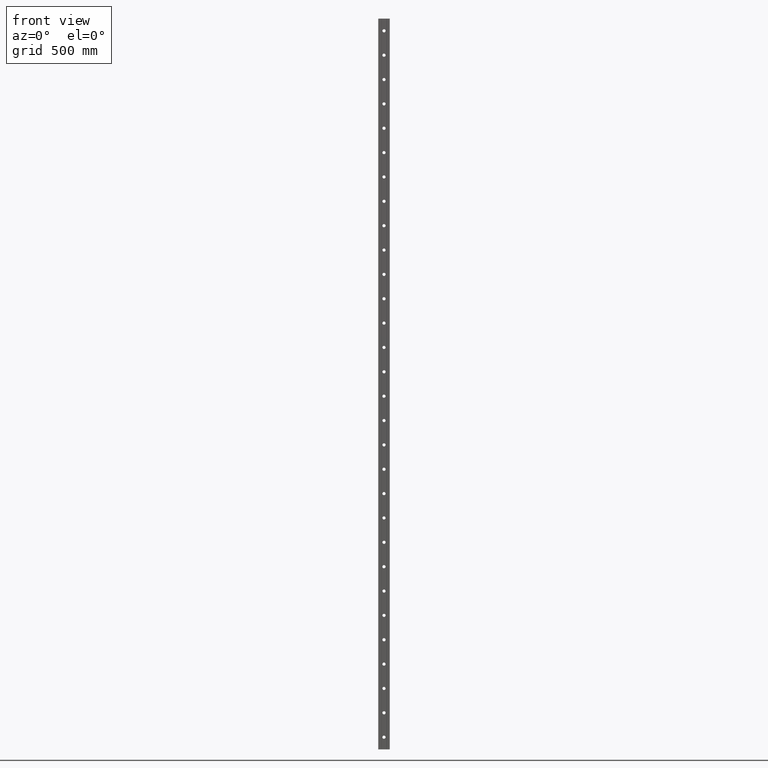
[diagram: clean part render]
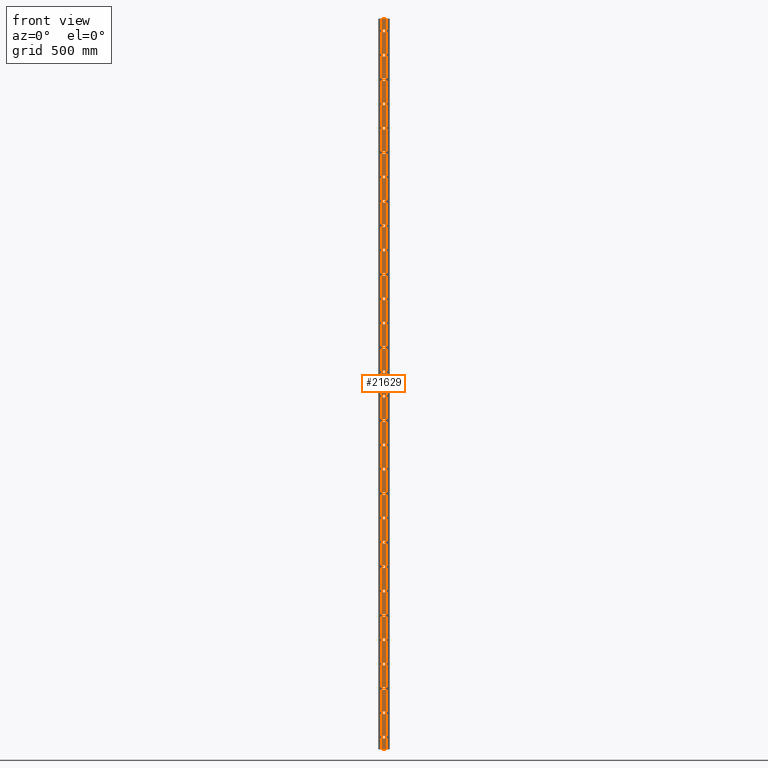
[diagram: same view with one face highlighted and labeled with its STEP entity id]
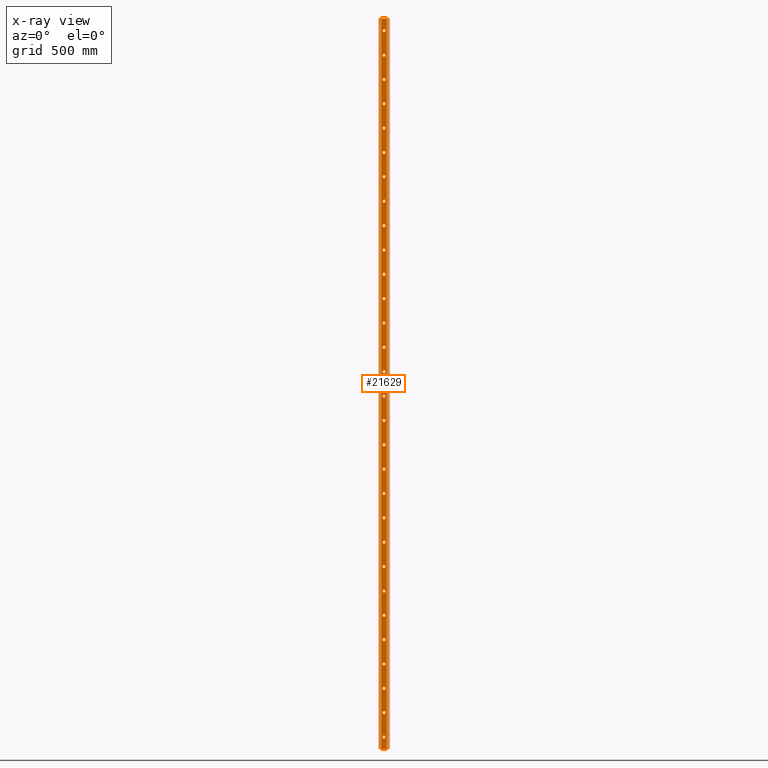
[diagram: x-ray of the same camera — body ghosted, the highlighted face saturated]
A machine part, front view. The second image highlights one B-rep face of the part: STEP entity #21629.
The next image is the same camera in x-ray: the body ghosted, the highlighted face saturated — about 0% of this face is hidden behind the body in this view.
In plain terms, the highlighted planar face has unit normal (-0, 1, 0).
Its self-contained STEP definition (entity closure, byte-faithful):
#4 = ORIENTED_EDGE ( 'NONE', *, *, #7362, .T. ) ;
#114 = AXIS2_PLACEMENT_3D ( 'NONE', #14451, #12893, #659 ) ;
#120 = DIRECTION ( 'NONE',  ( -1.000000000000000000, 0.0000000000000000000, 0.0000000000000000000 ) ) ;
#122 = VERTEX_POINT ( 'NONE', #15105 ) ;
#173 = CARTESIAN_POINT ( 'NONE',  ( -1.836970198721031300E-013, 3.000000000000000900, 749.9999999999998900 ) ) ;
#284 = FACE_BOUND ( 'NONE', #6459, .T. ) ;
#305 = CIRCLE ( 'NONE', #7468, 6.499999999999997300 ) ;
#328 = CIRCLE ( 'NONE', #14972, 6.499999999999997300 ) ;
#337 = CARTESIAN_POINT ( 'NONE',  ( -1.836970198721031300E-013, 3.000000000000000900, 656.4999999999998900 ) ) ;
#366 = DIRECTION ( 'NONE',  ( -1.971276677246371600E-017, 1.000000000000000000, 0.0000000000000000000 ) ) ;
#396 = ORIENTED_EDGE ( 'NONE', *, *, #4882, .T. ) ;
#406 = VERTEX_POINT ( 'NONE', #10564 ) ;
#439 = ORIENTED_EDGE ( 'NONE', *, *, #20376, .T. ) ;
#510 = DIRECTION ( 'NONE',  ( -1.000000000000000000, 0.0000000000000000000, 0.0000000000000000000 ) ) ;
#525 = VERTEX_POINT ( 'NONE', #20269 ) ;
#527 = EDGE_LOOP ( 'NONE', ( #14829, #18271 ) ) ;
#570 = FACE_BOUND ( 'NONE', #11585, .T. ) ;
#580 = AXIS2_PLACEMENT_3D ( 'NONE', #4723, #17041, #10023 ) ;
#640 = CARTESIAN_POINT ( 'NONE',  ( -1.836970198721031300E-013, 3.000000000000000900, -450.0000000000001700 ) ) ;
#659 = DIRECTION ( 'NONE',  ( -1.000000000000000000, -1.971276677246371600E-017, 0.0000000000000000000 ) ) ;
#673 = ORIENTED_EDGE ( 'NONE', *, *, #1696, .T. ) ;
#687 = ORIENTED_EDGE ( 'NONE', *, *, #9904, .T. ) ;
#733 = LINE ( 'NONE', #18919, #3772 ) ;
#774 = EDGE_CURVE ( 'NONE', #9876, #16069, #12146, .T. ) ;
#783 = CARTESIAN_POINT ( 'NONE',  ( -1.836970198721031300E-013, 3.000000000000000900, -50.00000000000004300 ) ) ;
#813 = CARTESIAN_POINT ( 'NONE',  ( -1.836970198721031300E-013, 3.000000000000000900, -850.0000000000003400 ) ) ;
#840 = DIRECTION ( 'NONE',  ( -1.000000000000000000, 0.0000000000000000000, 0.0000000000000000000 ) ) ;
#905 = CARTESIAN_POINT ( 'NONE',  ( -1.836970198721031300E-013, 3.000000000000000900, -950.0000000000004500 ) ) ;
#936 = DIRECTION ( 'NONE',  ( -1.000000000000000000, 0.0000000000000000000, 0.0000000000000000000 ) ) ;
#943 = EDGE_CURVE ( 'NONE', #13312, #6664, #18797, .T. ) ;
#990 = VERTEX_POINT ( 'NONE', #1374 ) ;
#1109 = CIRCLE ( 'NONE', #10396, 6.499999999999997300 ) ;
#1166 = DIRECTION ( 'NONE',  ( -1.000000000000000000, 0.0000000000000000000, 0.0000000000000000000 ) ) ;
#1189 = DIRECTION ( 'NONE',  ( -1.000000000000000000, 0.0000000000000000000, 0.0000000000000000000 ) ) ;
#1209 = EDGE_LOOP ( 'NONE', ( #19296, #17374 ) ) ;
#1247 = CIRCLE ( 'NONE', #5974, 6.499999999999997300 ) ;
#1255 = VERTEX_POINT ( 'NONE', #13732 ) ;
#1273 = ORIENTED_EDGE ( 'NONE', *, *, #18455, .T. ) ;
#1283 = CIRCLE ( 'NONE', #22304, 6.499999999999997300 ) ;
#1294 = ORIENTED_EDGE ( 'NONE', *, *, #18630, .F. ) ;
#1306 = CARTESIAN_POINT ( 'NONE',  ( -1.836970198721031300E-013, 3.000000000000000900, -343.5000000000000600 ) ) ;
#1327 = VERTEX_POINT ( 'NONE', #22798 ) ;
#1369 = FACE_BOUND ( 'NONE', #3134, .T. ) ;
#1370 = AXIS2_PLACEMENT_3D ( 'NONE', #10024, #15354, #1189 ) ;
#1374 = CARTESIAN_POINT ( 'NONE',  ( -1.829009994526573400E-013, 3.000000000000000900, -656.5000000000001100 ) ) ;
#1475 = AXIS2_PLACEMENT_3D ( 'NONE', #7935, #20257, #22024 ) ;
#1499 = CIRCLE ( 'NONE', #12950, 6.499999999999997300 ) ;
#1508 = ORIENTED_EDGE ( 'NONE', *, *, #2344, .T. ) ;
#1624 = CIRCLE ( 'NONE', #10233, 6.499999999999997300 ) ;
#1696 = EDGE_CURVE ( 'NONE', #16503, #1729, #2506, .T. ) ;
#1704 = VERTEX_POINT ( 'NONE', #10587 ) ;
#1729 = VERTEX_POINT ( 'NONE', #10506 ) ;
#1744 = VERTEX_POINT ( 'NONE', #15669 ) ;
#1760 = DIRECTION ( 'NONE',  ( -1.000000000000000000, 0.0000000000000000000, 0.0000000000000000000 ) ) ;
#1865 = EDGE_CURVE ( 'NONE', #10178, #22702, #13506, .T. ) ;
#1939 = FACE_BOUND ( 'NONE', #22731, .T. ) ;
#1960 = DIRECTION ( 'NONE',  ( 1.000000000000000000, 1.971276677246372000E-017, 0.0000000000000000000 ) ) ;
#2109 = AXIS2_PLACEMENT_3D ( 'NONE', #173, #16042, #17799 ) ;
#2146 = CARTESIAN_POINT ( 'NONE',  ( -1.829009994526573400E-013, 3.000000000000000900, 1343.500000000000000 ) ) ;
#2155 = EDGE_CURVE ( 'NONE', #9172, #2863, #16003, .T. ) ;
#2169 = VERTEX_POINT ( 'NONE', #12665 ) ;
#2249 = EDGE_LOOP ( 'NONE', ( #16012, #7678 ) ) ;
#2255 = DIRECTION ( 'NONE',  ( -1.971276677246371600E-017, 1.000000000000000000, 0.0000000000000000000 ) ) ;
#2330 = CARTESIAN_POINT ( 'NONE',  ( -1.836970198721031300E-013, 3.000000000000000900, 1049.999999999999800 ) ) ;
#2332 = EDGE_LOOP ( 'NONE', ( #3873, #673 ) ) ;
#2344 = EDGE_CURVE ( 'NONE', #13991, #3059, #21206, .T. ) ;
#2395 = AXIS2_PLACEMENT_3D ( 'NONE', #13084, #6135, #7843 ) ;
#2410 = DIRECTION ( 'NONE',  ( -1.000000000000000000, 0.0000000000000000000, 0.0000000000000000000 ) ) ;
#2477 = CARTESIAN_POINT ( 'NONE',  ( -1.836970198721031300E-013, 3.000000000000000900, -750.0000000000002300 ) ) ;
#2506 = CIRCLE ( 'NONE', #4606, 6.499999999999997300 ) ;
#2509 = DIRECTION ( 'NONE',  ( -1.000000000000000000, 0.0000000000000000000, 0.0000000000000000000 ) ) ;
#2512 = CARTESIAN_POINT ( 'NONE',  ( -1.836970198721031300E-013, 3.000000000000000900, -650.0000000000001100 ) ) ;
#2606 = VERTEX_POINT ( 'NONE', #16346 ) ;
#2610 = VERTEX_POINT ( 'NONE', #14652 ) ;
#2704 = VERTEX_POINT ( 'NONE', #9414 ) ;
#2707 = CIRCLE ( 'NONE', #9379, 6.499999999999997300 ) ;
#2726 = AXIS2_PLACEMENT_3D ( 'NONE', #8926, #7022, #14176 ) ;
#2788 = DIRECTION ( 'NONE',  ( -1.000000000000000000, 0.0000000000000000000, 0.0000000000000000000 ) ) ;
#2790 = CARTESIAN_POINT ( 'NONE',  ( -1.836970198721031300E-013, 3.000000000000000900, -450.0000000000001700 ) ) ;
#2831 = AXIS2_PLACEMENT_3D ( 'NONE', #19282, #8639, #10637 ) ;
#2842 = EDGE_LOOP ( 'NONE', ( #20369, #1508 ) ) ;
#2854 = DIRECTION ( 'NONE',  ( -1.000000000000000000, 0.0000000000000000000, 0.0000000000000000000 ) ) ;
#2863 = VERTEX_POINT ( 'NONE', #20493 ) ;
#2884 = DIRECTION ( 'NONE',  ( -1.000000000000000000, 0.0000000000000000000, 0.0000000000000000000 ) ) ;
#3053 = CARTESIAN_POINT ( 'NONE',  ( -1.836970198721031300E-013, 3.000000000000000900, -1150.000000000000200 ) ) ;
#3059 = VERTEX_POINT ( 'NONE', #21149 ) ;
#3083 = CARTESIAN_POINT ( 'NONE',  ( -1.829009994526573400E-013, 3.000000000000000900, 1243.500000000000000 ) ) ;
#3110 = EDGE_CURVE ( 'NONE', #22493, #15391, #3577, .T. ) ;
#3134 = EDGE_LOOP ( 'NONE', ( #11286, #6134 ) ) ;
#3156 = DIRECTION ( 'NONE',  ( -1.000000000000000000, 0.0000000000000000000, 0.0000000000000000000 ) ) ;
#3167 = CARTESIAN_POINT ( 'NONE',  ( -1.836970198721031300E-013, 3.000000000000000900, -1150.000000000000200 ) ) ;
#3288 = CARTESIAN_POINT ( 'NONE',  ( -1.836970198721031300E-013, 3.000000000000000900, 1456.500000000000000 ) ) ;
#3388 = EDGE_CURVE ( 'NONE', #21315, #9616, #11808, .T. ) ;
#3398 = CARTESIAN_POINT ( 'NONE',  ( -1.829009994526573400E-013, 3.000000000000000900, -56.50000000000004300 ) ) ;
#3420 = ORIENTED_EDGE ( 'NONE', *, *, #14029, .T. ) ;
#3453 = EDGE_LOOP ( 'NONE', ( #3759, #13193 ) ) ;
#3457 = EDGE_CURVE ( 'NONE', #13268, #18384, #9068, .T. ) ;
#3506 = AXIS2_PLACEMENT_3D ( 'NONE', #17915, #10885, #12668 ) ;
#3524 = CIRCLE ( 'NONE', #20225, 6.499999999999997300 ) ;
#3546 = CIRCLE ( 'NONE', #2831, 6.499999999999997300 ) ;
#3577 = CIRCLE ( 'NONE', #21126, 6.499999999999997300 ) ;
#3598 = CARTESIAN_POINT ( 'NONE',  ( -1.836970198721031300E-013, 3.000000000000000900, 49.99999999999982200 ) ) ;
#3647 = AXIS2_PLACEMENT_3D ( 'NONE', #21741, #18224, #510 ) ;
#3659 = CARTESIAN_POINT ( 'NONE',  ( -1.836970198721031300E-013, 3.000000000000000900, 49.99999999999982200 ) ) ;
#3715 = CARTESIAN_POINT ( 'NONE',  ( 11.00000000000000000, 3.000000000000000000, 1500.000000000000000 ) ) ;
#3718 = CARTESIAN_POINT ( 'NONE',  ( -5.913830031739115500E-017, 3.000000000000000000, 1500.000000000000000 ) ) ;
#3759 = ORIENTED_EDGE ( 'NONE', *, *, #14209, .T. ) ;
#3772 = VECTOR ( 'NONE', #11813, 1000.000000000000000 ) ;
#3825 = CARTESIAN_POINT ( 'NONE',  ( -1.829009994526573400E-013, 3.000000000000000900, 543.5000000000000000 ) ) ;
#3866 = EDGE_CURVE ( 'NONE', #21328, #2610, #1624, .T. ) ;
#3873 = ORIENTED_EDGE ( 'NONE', *, *, #10462, .T. ) ;
#3980 = DIRECTION ( 'NONE',  ( -1.000000000000000000, 0.0000000000000000000, 0.0000000000000000000 ) ) ;
#4012 = DIRECTION ( 'NONE',  ( -1.000000000000000000, 0.0000000000000000000, 0.0000000000000000000 ) ) ;
#4084 = CARTESIAN_POINT ( 'NONE',  ( -1.836970198721031300E-013, 3.000000000000000900, 950.0000000000000000 ) ) ;
#4105 = CARTESIAN_POINT ( 'NONE',  ( -1.829009994526573400E-013, 3.000000000000000900, 243.4999999999997700 ) ) ;
#4136 = VERTEX_POINT ( 'NONE', #10638 ) ;
#4140 = FACE_BOUND ( 'NONE', #1209, .T. ) ;
#4154 = EDGE_CURVE ( 'NONE', #18384, #13268, #6289, .T. ) ;
#4193 = EDGE_LOOP ( 'NONE', ( #20319, #22524 ) ) ;
#4258 = CIRCLE ( 'NONE', #13677, 6.499999999999997300 ) ;
#4276 = CARTESIAN_POINT ( 'NONE',  ( -1.836970198721031300E-013, 3.000000000000000900, -1450.000000000000500 ) ) ;
#4283 = DIRECTION ( 'NONE',  ( -1.000000000000000000, 0.0000000000000000000, 0.0000000000000000000 ) ) ;
#4301 = DIRECTION ( 'NONE',  ( -1.971276677246371600E-017, 1.000000000000000000, 0.0000000000000000000 ) ) ;
#4338 = AXIS2_PLACEMENT_3D ( 'NONE', #11273, #4426, #11346 ) ;
#4368 = CIRCLE ( 'NONE', #16814, 6.499999999999997300 ) ;
#4387 = DIRECTION ( 'NONE',  ( -1.971276677246371600E-017, 1.000000000000000000, 0.0000000000000000000 ) ) ;
#4389 = FACE_BOUND ( 'NONE', #14106, .T. ) ;
#4426 = DIRECTION ( 'NONE',  ( -1.971276677246371600E-017, 1.000000000000000000, 0.0000000000000000000 ) ) ;
#4447 = EDGE_LOOP ( 'NONE', ( #5564, #16438 ) ) ;
#4481 = ORIENTED_EDGE ( 'NONE', *, *, #11706, .T. ) ;
#4560 = DIRECTION ( 'NONE',  ( -1.971276677246371600E-017, 1.000000000000000000, 0.0000000000000000000 ) ) ;
#4592 = CARTESIAN_POINT ( 'NONE',  ( -1.829009994526573400E-013, 3.000000000000000900, 43.49999999999982200 ) ) ;
#4606 = AXIS2_PLACEMENT_3D ( 'NONE', #7068, #19462, #14069 ) ;
#4637 = CARTESIAN_POINT ( 'NONE',  ( -1.836970198721031300E-013, 3.000000000000000900, 849.9999999999998900 ) ) ;
#4638 = DIRECTION ( 'NONE',  ( -1.000000000000000000, 0.0000000000000000000, 0.0000000000000000000 ) ) ;
#4684 = FACE_BOUND ( 'NONE', #21239, .T. ) ;
#4692 = DIRECTION ( 'NONE',  ( -1.000000000000000000, 0.0000000000000000000, 0.0000000000000000000 ) ) ;
#4713 = AXIS2_PLACEMENT_3D ( 'NONE', #905, #6046, #18390 ) ;
#4723 = CARTESIAN_POINT ( 'NONE',  ( -1.836970198721031300E-013, 3.000000000000000900, 1450.000000000000000 ) ) ;
#4767 = DIRECTION ( 'NONE',  ( -1.971276677246371600E-017, 1.000000000000000000, 0.0000000000000000000 ) ) ;
#4779 = VERTEX_POINT ( 'NONE', #4592 ) ;
#4798 = DIRECTION ( 'NONE',  ( -1.000000000000000000, 0.0000000000000000000, 0.0000000000000000000 ) ) ;
#4882 = EDGE_CURVE ( 'NONE', #10625, #21904, #4913, .T. ) ;
#4913 = CIRCLE ( 'NONE', #5947, 6.499999999999997300 ) ;
#4944 = FACE_BOUND ( 'NONE', #22837, .T. ) ;
#4980 = CARTESIAN_POINT ( 'NONE',  ( -1.836970198721031300E-013, 3.000000000000000900, -1243.500000000000200 ) ) ;
#5075 = DIRECTION ( 'NONE',  ( -1.971276677246371600E-017, 1.000000000000000000, 0.0000000000000000000 ) ) ;
#5240 = FACE_BOUND ( 'NONE', #5884, .T. ) ;
#5434 = EDGE_LOOP ( 'NONE', ( #7693, #439 ) ) ;
#5462 = CIRCLE ( 'NONE', #21402, 6.499999999999997300 ) ;
#5465 = CARTESIAN_POINT ( 'NONE',  ( -1.829009994526573400E-013, 3.000000000000000900, -256.5000000000002300 ) ) ;
#5476 = EDGE_CURVE ( 'NONE', #20775, #4136, #2707, .T. ) ;
#5480 = ORIENTED_EDGE ( 'NONE', *, *, #6377, .T. ) ;
#5564 = ORIENTED_EDGE ( 'NONE', *, *, #16394, .T. ) ;
#5623 = CARTESIAN_POINT ( 'NONE',  ( -1.836970198721031300E-013, 3.000000000000000900, 756.4999999999998900 ) ) ;
#5670 = EDGE_CURVE ( 'NONE', #16844, #19947, #14559, .T. ) ;
#5702 = DIRECTION ( 'NONE',  ( -1.000000000000000000, 0.0000000000000000000, 0.0000000000000000000 ) ) ;
#5834 = DIRECTION ( 'NONE',  ( -1.000000000000000000, 0.0000000000000000000, 0.0000000000000000000 ) ) ;
#5852 = DIRECTION ( 'NONE',  ( -1.971276677246371600E-017, 1.000000000000000000, 0.0000000000000000000 ) ) ;
#5858 = ORIENTED_EDGE ( 'NONE', *, *, #8643, .T. ) ;
#5863 = EDGE_CURVE ( 'NONE', #8286, #9586, #6834, .T. ) ;
#5865 = CARTESIAN_POINT ( 'NONE',  ( -1.836970198721031300E-013, 3.000000000000000900, -250.0000000000002300 ) ) ;
#5884 = EDGE_LOOP ( 'NONE', ( #10803, #20116 ) ) ;
#5890 = ORIENTED_EDGE ( 'NONE', *, *, #15591, .T. ) ;
#5947 = AXIS2_PLACEMENT_3D ( 'NONE', #19074, #20841, #1760 ) ;
#5967 = CARTESIAN_POINT ( 'NONE',  ( -1.829009994526573400E-013, 3.000000000000000900, 343.4999999999998900 ) ) ;
#5974 = AXIS2_PLACEMENT_3D ( 'NONE', #3598, #12277, #21364 ) ;
#6000 = EDGE_LOOP ( 'NONE', ( #3420, #11154 ) ) ;
#6046 = DIRECTION ( 'NONE',  ( -1.971276677246371600E-017, 1.000000000000000000, 0.0000000000000000000 ) ) ;
#6054 = EDGE_CURVE ( 'NONE', #19978, #525, #8450, .T. ) ;
#6134 = ORIENTED_EDGE ( 'NONE', *, *, #16367, .T. ) ;
#6135 = DIRECTION ( 'NONE',  ( -1.971276677246371600E-017, 1.000000000000000000, 0.0000000000000000000 ) ) ;
#6190 = DIRECTION ( 'NONE',  ( -1.000000000000000000, 0.0000000000000000000, 0.0000000000000000000 ) ) ;
#6289 = CIRCLE ( 'NONE', #10360, 6.499999999999997300 ) ;
#6377 = EDGE_CURVE ( 'NONE', #21225, #18931, #17389, .T. ) ;
#6385 = ORIENTED_EDGE ( 'NONE', *, *, #18295, .T. ) ;
#6459 = EDGE_LOOP ( 'NONE', ( #20872, #19659 ) ) ;
#6466 = CARTESIAN_POINT ( 'NONE',  ( -1.836970198721031300E-013, 3.000000000000000900, -1350.000000000000200 ) ) ;
#6544 = CARTESIAN_POINT ( 'NONE',  ( -1.836970198721031300E-013, 3.000000000000000900, -143.5000000000001100 ) ) ;
#6564 = ORIENTED_EDGE ( 'NONE', *, *, #3110, .T. ) ;
#6570 = CARTESIAN_POINT ( 'NONE',  ( -1.836970198721031300E-013, 3.000000000000000900, -1043.500000000000000 ) ) ;
#6577 = DIRECTION ( 'NONE',  ( -1.000000000000000000, 0.0000000000000000000, 0.0000000000000000000 ) ) ;
#6582 = CIRCLE ( 'NONE', #17558, 6.499999999999997300 ) ;
#6602 = FACE_BOUND ( 'NONE', #21889, .T. ) ;
#6608 = ORIENTED_EDGE ( 'NONE', *, *, #16998, .T. ) ;
#6636 = ORIENTED_EDGE ( 'NONE', *, *, #1865, .T. ) ;
#6664 = VERTEX_POINT ( 'NONE', #10467 ) ;
#6698 = CARTESIAN_POINT ( 'NONE',  ( -1.836970198721031300E-013, 3.000000000000000900, 1150.000000000000000 ) ) ;
#6704 = CIRCLE ( 'NONE', #16070, 6.499999999999997300 ) ;
#6761 = DIRECTION ( 'NONE',  ( -1.971276677246371600E-017, 1.000000000000000000, 0.0000000000000000000 ) ) ;
#6834 = CIRCLE ( 'NONE', #19706, 6.499999999999997300 ) ;
#6858 = EDGE_LOOP ( 'NONE', ( #22310, #19196 ) ) ;
#7022 = DIRECTION ( 'NONE',  ( -1.971276677246371600E-017, 1.000000000000000000, 0.0000000000000000000 ) ) ;
#7028 = ORIENTED_EDGE ( 'NONE', *, *, #3457, .T. ) ;
#7068 = CARTESIAN_POINT ( 'NONE',  ( -1.836970198721031300E-013, 3.000000000000000900, -50.00000000000004300 ) ) ;
#7167 = FACE_BOUND ( 'NONE', #22093, .T. ) ;
#7286 = CARTESIAN_POINT ( 'NONE',  ( -1.836970198721031300E-013, 3.000000000000000900, 1250.000000000000000 ) ) ;
#7290 = AXIS2_PLACEMENT_3D ( 'NONE', #11297, #15011, #2854 ) ;
#7327 = AXIS2_PLACEMENT_3D ( 'NONE', #17006, #6761, #4692 ) ;
#7362 = EDGE_CURVE ( 'NONE', #9586, #8286, #22208, .T. ) ;
#7385 = AXIS2_PLACEMENT_3D ( 'NONE', #20468, #22444, #10114 ) ;
#7438 = AXIS2_PLACEMENT_3D ( 'NONE', #14905, #13437, #6190 ) ;
#7442 = CARTESIAN_POINT ( 'NONE',  ( -1.836970198721031300E-013, 3.000000000000000900, 649.9999999999998900 ) ) ;
#7468 = AXIS2_PLACEMENT_3D ( 'NONE', #14162, #17702, #17159 ) ;
#7496 = DIRECTION ( 'NONE',  ( -1.971276677246371600E-017, 1.000000000000000000, 0.0000000000000000000 ) ) ;
#7508 = DIRECTION ( 'NONE',  ( -1.971276677246371600E-017, 1.000000000000000000, 0.0000000000000000000 ) ) ;
#7534 = EDGE_LOOP ( 'NONE', ( #4, #21016 ) ) ;
#7638 = DIRECTION ( 'NONE',  ( -1.000000000000000000, 0.0000000000000000000, 0.0000000000000000000 ) ) ;
#7678 = ORIENTED_EDGE ( 'NONE', *, *, #6054, .T. ) ;
#7693 = ORIENTED_EDGE ( 'NONE', *, *, #14567, .T. ) ;
#7694 = CARTESIAN_POINT ( 'NONE',  ( -1.836970198721031300E-013, 3.000000000000000900, -950.0000000000004500 ) ) ;
#7695 = DIRECTION ( 'NONE',  ( -0.0000000000000000000, -0.0000000000000000000, -1.000000000000000000 ) ) ;
#7740 = DIRECTION ( 'NONE',  ( -1.000000000000000000, 0.0000000000000000000, 0.0000000000000000000 ) ) ;
#7741 = DIRECTION ( 'NONE',  ( -1.971276677246371600E-017, 1.000000000000000000, 0.0000000000000000000 ) ) ;
#7768 = CARTESIAN_POINT ( 'NONE',  ( 11.00000000000000000, 3.000000000000000000, 1500.000000000000000 ) ) ;
#7789 = DIRECTION ( 'NONE',  ( -1.971276677246371600E-017, 1.000000000000000000, 0.0000000000000000000 ) ) ;
#7814 = EDGE_LOOP ( 'NONE', ( #16770, #13207 ) ) ;
#7816 = EDGE_CURVE ( 'NONE', #22702, #10178, #10063, .T. ) ;
#7840 = AXIS2_PLACEMENT_3D ( 'NONE', #19125, #13958, #11869 ) ;
#7843 = DIRECTION ( 'NONE',  ( -1.000000000000000000, 0.0000000000000000000, 0.0000000000000000000 ) ) ;
#7935 = CARTESIAN_POINT ( 'NONE',  ( -1.836970198721031300E-013, 3.000000000000000900, 449.9999999999999400 ) ) ;
#7992 = LINE ( 'NONE', #7768, #13234 ) ;
#8008 = EDGE_LOOP ( 'NONE', ( #6385, #21382 ) ) ;
#8009 = VERTEX_POINT ( 'NONE', #1306 ) ;
#8013 = AXIS2_PLACEMENT_3D ( 'NONE', #17035, #9945, #4638 ) ;
#8028 = DIRECTION ( 'NONE',  ( -1.971276677246371600E-017, 1.000000000000000000, 0.0000000000000000000 ) ) ;
#8050 = EDGE_CURVE ( 'NONE', #20016, #16529, #11175, .T. ) ;
#8057 = AXIS2_PLACEMENT_3D ( 'NONE', #18935, #4767, #22386 ) ;
#8060 = CIRCLE ( 'NONE', #15997, 6.499999999999997300 ) ;
#8162 = DIRECTION ( 'NONE',  ( -1.000000000000000000, 0.0000000000000000000, 0.0000000000000000000 ) ) ;
#8190 = CIRCLE ( 'NONE', #14637, 6.499999999999997300 ) ;
#8246 = DIRECTION ( 'NONE',  ( -1.000000000000000000, 0.0000000000000000000, 0.0000000000000000000 ) ) ;
#8286 = VERTEX_POINT ( 'NONE', #11355 ) ;
#8409 = EDGE_CURVE ( 'NONE', #18931, #21225, #13085, .T. ) ;
#8450 = CIRCLE ( 'NONE', #14096, 6.499999999999997300 ) ;
#8552 = DIRECTION ( 'NONE',  ( 1.000000000000000000, 1.971276677246372000E-017, 0.0000000000000000000 ) ) ;
#8557 = CARTESIAN_POINT ( 'NONE',  ( -1.836970198721031300E-013, 3.000000000000000900, 256.4999999999997700 ) ) ;
#8581 = CARTESIAN_POINT ( 'NONE',  ( -1.829009994526573400E-013, 3.000000000000000900, -1356.500000000000200 ) ) ;
#8639 = DIRECTION ( 'NONE',  ( -1.971276677246371600E-017, 1.000000000000000000, 0.0000000000000000000 ) ) ;
#8640 = CARTESIAN_POINT ( 'NONE',  ( -1.836970198721031300E-013, 3.000000000000000900, 249.9999999999997700 ) ) ;
#8643 = EDGE_CURVE ( 'NONE', #17806, #4779, #1247, .T. ) ;
#8679 = EDGE_CURVE ( 'NONE', #17348, #2169, #18085, .T. ) ;
#8711 = CARTESIAN_POINT ( 'NONE',  ( -1.836970198721031300E-013, 3.000000000000000900, -1250.000000000000200 ) ) ;
#8792 = DIRECTION ( 'NONE',  ( -1.971276677246371600E-017, 1.000000000000000000, 0.0000000000000000000 ) ) ;
#8865 = EDGE_CURVE ( 'NONE', #9563, #16689, #11963, .T. ) ;
#8875 = DIRECTION ( 'NONE',  ( -1.000000000000000000, 0.0000000000000000000, 0.0000000000000000000 ) ) ;
#8926 = CARTESIAN_POINT ( 'NONE',  ( -1.836970198721031300E-013, 3.000000000000000900, -1350.000000000000200 ) ) ;
#9068 = CIRCLE ( 'NONE', #7290, 6.499999999999997300 ) ;
#9172 = VERTEX_POINT ( 'NONE', #337 ) ;
#9176 = CARTESIAN_POINT ( 'NONE',  ( -1.836970198721031300E-013, 3.000000000000000900, -443.5000000000001700 ) ) ;
#9185 = EDGE_LOOP ( 'NONE', ( #18012, #17765 ) ) ;
#9208 = CARTESIAN_POINT ( 'NONE',  ( -1.836970198721031300E-013, 3.000000000000000900, -250.0000000000002300 ) ) ;
#9260 = CARTESIAN_POINT ( 'NONE',  ( -1.836970198721031300E-013, 3.000000000000000900, 649.9999999999998900 ) ) ;
#9299 = VERTEX_POINT ( 'NONE', #3288 ) ;
#9304 = AXIS2_PLACEMENT_3D ( 'NONE', #19234, #13762, #3156 ) ;
#9330 = CIRCLE ( 'NONE', #8057, 6.499999999999997300 ) ;
#9351 = AXIS2_PLACEMENT_3D ( 'NONE', #7442, #21516, #16362 ) ;
#9379 = AXIS2_PLACEMENT_3D ( 'NONE', #640, #11384, #12953 ) ;
#9387 = EDGE_CURVE ( 'NONE', #2169, #17348, #21356, .T. ) ;
#9414 = CARTESIAN_POINT ( 'NONE',  ( -11.00000000000000000, 3.000000000000000000, -1500.000000000000000 ) ) ;
#9482 = DIRECTION ( 'NONE',  ( -1.000000000000000000, 0.0000000000000000000, 0.0000000000000000000 ) ) ;
#9499 = ORIENTED_EDGE ( 'NONE', *, *, #12409, .T. ) ;
#9523 = CARTESIAN_POINT ( 'NONE',  ( -1.836970198721031300E-013, 3.000000000000000900, -850.0000000000003400 ) ) ;
#9563 = VERTEX_POINT ( 'NONE', #6570 ) ;
#9586 = VERTEX_POINT ( 'NONE', #20590 ) ;
#9610 = CARTESIAN_POINT ( 'NONE',  ( -1.829009994526573400E-013, 3.000000000000000900, -1456.500000000000500 ) ) ;
#9616 = VERTEX_POINT ( 'NONE', #15209 ) ;
#9638 = DIRECTION ( 'NONE',  ( -1.971276677246371600E-017, 1.000000000000000000, 0.0000000000000000000 ) ) ;
#9661 = AXIS2_PLACEMENT_3D ( 'NONE', #17735, #17422, #21036 ) ;
#9741 = EDGE_CURVE ( 'NONE', #10958, #1704, #4258, .T. ) ;
#9876 = VERTEX_POINT ( 'NONE', #18417 ) ;
#9904 = EDGE_CURVE ( 'NONE', #2610, #21328, #1499, .T. ) ;
#9906 = FACE_BOUND ( 'NONE', #19530, .T. ) ;
#9945 = DIRECTION ( 'NONE',  ( -1.971276677246371600E-017, 1.000000000000000000, 0.0000000000000000000 ) ) ;
#10004 = DIRECTION ( 'NONE',  ( -1.971276677246371600E-017, 1.000000000000000000, 0.0000000000000000000 ) ) ;
#10023 = DIRECTION ( 'NONE',  ( -1.000000000000000000, 0.0000000000000000000, 0.0000000000000000000 ) ) ;
#10024 = CARTESIAN_POINT ( 'NONE',  ( -1.836970198721031300E-013, 3.000000000000000900, 849.9999999999998900 ) ) ;
#10063 = CIRCLE ( 'NONE', #9661, 6.499999999999997300 ) ;
#10114 = DIRECTION ( 'NONE',  ( -1.000000000000000000, 0.0000000000000000000, 0.0000000000000000000 ) ) ;
#10115 = VERTEX_POINT ( 'NONE', #17204 ) ;
#10144 = CARTESIAN_POINT ( 'NONE',  ( -1.836970198721031300E-013, 3.000000000000000900, 1049.999999999999800 ) ) ;
#10165 = FACE_BOUND ( 'NONE', #20159, .T. ) ;
#10175 = EDGE_CURVE ( 'NONE', #525, #19978, #6704, .T. ) ;
#10178 = VERTEX_POINT ( 'NONE', #18837 ) ;
#10184 = CIRCLE ( 'NONE', #4713, 6.499999999999997300 ) ;
#10233 = AXIS2_PLACEMENT_3D ( 'NONE', #9523, #11067, #4283 ) ;
#10328 = ORIENTED_EDGE ( 'NONE', *, *, #16169, .T. ) ;
#10359 = CARTESIAN_POINT ( 'NONE',  ( -1.829009994526573400E-013, 3.000000000000000900, 843.4999999999998900 ) ) ;
#10360 = AXIS2_PLACEMENT_3D ( 'NONE', #8640, #21192, #15988 ) ;
#10396 = AXIS2_PLACEMENT_3D ( 'NONE', #9208, #14369, #10884 ) ;
#10462 = EDGE_CURVE ( 'NONE', #1729, #16503, #11364, .T. ) ;
#10467 = CARTESIAN_POINT ( 'NONE',  ( -1.829009994526573400E-013, 3.000000000000000900, 443.4999999999999400 ) ) ;
#10489 = ORIENTED_EDGE ( 'NONE', *, *, #20812, .F. ) ;
#10506 = CARTESIAN_POINT ( 'NONE',  ( -1.836970198721031300E-013, 3.000000000000000900, -43.50000000000004300 ) ) ;
#10542 = CIRCLE ( 'NONE', #7840, 6.499999999999997300 ) ;
#10547 = EDGE_LOOP ( 'NONE', ( #5890, #9499 ) ) ;
#10564 = CARTESIAN_POINT ( 'NONE',  ( -1.836970198721031300E-013, 3.000000000000000900, -643.5000000000002300 ) ) ;
#10587 = CARTESIAN_POINT ( 'NONE',  ( -1.836970198721031300E-013, 3.000000000000000900, -243.5000000000002300 ) ) ;
#10607 = DIRECTION ( 'NONE',  ( -1.971276677246371600E-017, 1.000000000000000000, 0.0000000000000000000 ) ) ;
#10625 = VERTEX_POINT ( 'NONE', #6544 ) ;
#10632 = AXIS2_PLACEMENT_3D ( 'NONE', #8711, #8792, #8875 ) ;
#10637 = DIRECTION ( 'NONE',  ( -1.000000000000000000, 0.0000000000000000000, 0.0000000000000000000 ) ) ;
#10638 = CARTESIAN_POINT ( 'NONE',  ( -1.829009994526573400E-013, 3.000000000000000900, -456.5000000000001700 ) ) ;
#10728 = FACE_BOUND ( 'NONE', #8008, .T. ) ;
#10803 = ORIENTED_EDGE ( 'NONE', *, *, #9387, .T. ) ;
#10884 = DIRECTION ( 'NONE',  ( -1.000000000000000000, 0.0000000000000000000, 0.0000000000000000000 ) ) ;
#10885 = DIRECTION ( 'NONE',  ( -1.971276677246371600E-017, 1.000000000000000000, 0.0000000000000000000 ) ) ;
#10894 = DIRECTION ( 'NONE',  ( -1.000000000000000000, 0.0000000000000000000, 0.0000000000000000000 ) ) ;
#10958 = VERTEX_POINT ( 'NONE', #5465 ) ;
#11067 = DIRECTION ( 'NONE',  ( -1.971276677246371600E-017, 1.000000000000000000, 0.0000000000000000000 ) ) ;
#11120 = DIRECTION ( 'NONE',  ( -1.971276677246371600E-017, 1.000000000000000000, 0.0000000000000000000 ) ) ;
#11151 = AXIS2_PLACEMENT_3D ( 'NONE', #6698, #10607, #20941 ) ;
#11154 = ORIENTED_EDGE ( 'NONE', *, *, #8050, .T. ) ;
#11175 = CIRCLE ( 'NONE', #11151, 6.499999999999997300 ) ;
#11183 = CARTESIAN_POINT ( 'NONE',  ( -1.836970198721031300E-013, 3.000000000000000900, -1050.000000000000000 ) ) ;
#11189 = CIRCLE ( 'NONE', #20540, 6.499999999999997300 ) ;
#11271 = FACE_BOUND ( 'NONE', #9185, .T. ) ;
#11273 = CARTESIAN_POINT ( 'NONE',  ( -1.836970198721031300E-013, 3.000000000000000900, 1250.000000000000000 ) ) ;
#11286 = ORIENTED_EDGE ( 'NONE', *, *, #5670, .T. ) ;
#11297 = CARTESIAN_POINT ( 'NONE',  ( -1.836970198721031300E-013, 3.000000000000000900, 249.9999999999997700 ) ) ;
#11329 = DIRECTION ( 'NONE',  ( -1.971276677246371600E-017, 1.000000000000000000, 0.0000000000000000000 ) ) ;
#11336 = DIRECTION ( 'NONE',  ( -1.971276677246371600E-017, 1.000000000000000000, 0.0000000000000000000 ) ) ;
#11346 = DIRECTION ( 'NONE',  ( -1.000000000000000000, 0.0000000000000000000, 0.0000000000000000000 ) ) ;
#11355 = CARTESIAN_POINT ( 'NONE',  ( -1.829009994526573400E-013, 3.000000000000000900, -756.5000000000002300 ) ) ;
#11364 = CIRCLE ( 'NONE', #14132, 6.499999999999997300 ) ;
#11384 = DIRECTION ( 'NONE',  ( -1.971276677246371600E-017, 1.000000000000000000, 0.0000000000000000000 ) ) ;
#11512 = DIRECTION ( 'NONE',  ( -1.000000000000000000, 0.0000000000000000000, 0.0000000000000000000 ) ) ;
#11551 = VERTEX_POINT ( 'NONE', #14818 ) ;
#11582 = CIRCLE ( 'NONE', #1475, 6.499999999999997300 ) ;
#11585 = EDGE_LOOP ( 'NONE', ( #5480, #12290 ) ) ;
#11596 = DIRECTION ( 'NONE',  ( -1.971276677246371600E-017, 1.000000000000000000, 0.0000000000000000000 ) ) ;
#11618 = VERTEX_POINT ( 'NONE', #22420 ) ;
#11706 = EDGE_CURVE ( 'NONE', #2704, #2606, #22099, .T. ) ;
#11798 = DIRECTION ( 'NONE',  ( -1.971276677246371600E-017, 1.000000000000000000, 0.0000000000000000000 ) ) ;
#11801 = CARTESIAN_POINT ( 'NONE',  ( -1.836970198721031300E-013, 3.000000000000000900, 349.9999999999998900 ) ) ;
#11808 = CIRCLE ( 'NONE', #18791, 6.499999999999997300 ) ;
#11813 = DIRECTION ( 'NONE',  ( -0.0000000000000000000, -0.0000000000000000000, -1.000000000000000000 ) ) ;
#11869 = DIRECTION ( 'NONE',  ( -1.000000000000000000, 0.0000000000000000000, 0.0000000000000000000 ) ) ;
#11963 = CIRCLE ( 'NONE', #14575, 6.499999999999997300 ) ;
#12021 = DIRECTION ( 'NONE',  ( -1.971276677246371600E-017, 1.000000000000000000, 0.0000000000000000000 ) ) ;
#12044 = CARTESIAN_POINT ( 'NONE',  ( -1.836970198721031300E-013, 3.000000000000000900, 56.49999999999982200 ) ) ;
#12109 = CIRCLE ( 'NONE', #9304, 6.499999999999997300 ) ;
#12129 = CARTESIAN_POINT ( 'NONE',  ( -1.829009994526573400E-013, 3.000000000000000900, 1143.500000000000000 ) ) ;
#12146 = CIRCLE ( 'NONE', #2109, 6.499999999999997300 ) ;
#12161 = CIRCLE ( 'NONE', #4338, 6.499999999999997300 ) ;
#12187 = VECTOR ( 'NONE', #1960, 1000.000000000000000 ) ;
#12238 = EDGE_CURVE ( 'NONE', #16689, #9563, #18508, .T. ) ;
#12242 = CARTESIAN_POINT ( 'NONE',  ( -1.836970198721031300E-013, 3.000000000000000900, -1443.500000000000500 ) ) ;
#12257 = AXIS2_PLACEMENT_3D ( 'NONE', #12925, #16244, #5834 ) ;
#12277 = DIRECTION ( 'NONE',  ( -1.971276677246371600E-017, 1.000000000000000000, 0.0000000000000000000 ) ) ;
#12290 = ORIENTED_EDGE ( 'NONE', *, *, #8409, .T. ) ;
#12341 = CIRCLE ( 'NONE', #7327, 6.499999999999997300 ) ;
#12409 = EDGE_CURVE ( 'NONE', #1327, #9299, #13265, .T. ) ;
#12471 = ORIENTED_EDGE ( 'NONE', *, *, #3866, .T. ) ;
#12530 = ORIENTED_EDGE ( 'NONE', *, *, #19849, .T. ) ;
#12587 = PLANE ( 'NONE',  #114 ) ;
#12665 = CARTESIAN_POINT ( 'NONE',  ( -1.836970198721031300E-013, 3.000000000000000900, -543.5000000000001100 ) ) ;
#12666 = FACE_BOUND ( 'NONE', #21796, .T. ) ;
#12668 = DIRECTION ( 'NONE',  ( -1.000000000000000000, 0.0000000000000000000, 0.0000000000000000000 ) ) ;
#12758 = DIRECTION ( 'NONE',  ( -1.000000000000000000, 0.0000000000000000000, 0.0000000000000000000 ) ) ;
#12792 = VERTEX_POINT ( 'NONE', #16779 ) ;
#12893 = DIRECTION ( 'NONE',  ( -1.971276677246371600E-017, 1.000000000000000000, 0.0000000000000000000 ) ) ;
#12925 = CARTESIAN_POINT ( 'NONE',  ( -1.836970198721031300E-013, 3.000000000000000900, -150.0000000000001400 ) ) ;
#12950 = AXIS2_PLACEMENT_3D ( 'NONE', #813, #7741, #2509 ) ;
#12953 = DIRECTION ( 'NONE',  ( -1.000000000000000000, 0.0000000000000000000, 0.0000000000000000000 ) ) ;
#12954 = FACE_BOUND ( 'NONE', #6000, .T. ) ;
#13036 = DIRECTION ( 'NONE',  ( -1.000000000000000000, 0.0000000000000000000, 0.0000000000000000000 ) ) ;
#13084 = CARTESIAN_POINT ( 'NONE',  ( -1.836970198721031300E-013, 3.000000000000000900, 449.9999999999999400 ) ) ;
#13085 = CIRCLE ( 'NONE', #17810, 6.499999999999997300 ) ;
#13132 = CARTESIAN_POINT ( 'NONE',  ( -1.836970198721031300E-013, 3.000000000000000900, -943.5000000000004500 ) ) ;
#13193 = ORIENTED_EDGE ( 'NONE', *, *, #14835, .T. ) ;
#13207 = ORIENTED_EDGE ( 'NONE', *, *, #13554, .T. ) ;
#13211 = FACE_BOUND ( 'NONE', #10547, .T. ) ;
#13234 = VECTOR ( 'NONE', #7695, 1000.000000000000000 ) ;
#13265 = CIRCLE ( 'NONE', #580, 6.499999999999997300 ) ;
#13268 = VERTEX_POINT ( 'NONE', #8557 ) ;
#13272 = CARTESIAN_POINT ( 'NONE',  ( -1.836970198721031300E-013, 3.000000000000000900, -650.0000000000001100 ) ) ;
#13312 = VERTEX_POINT ( 'NONE', #21507 ) ;
#13437 = DIRECTION ( 'NONE',  ( -1.971276677246371600E-017, 1.000000000000000000, 0.0000000000000000000 ) ) ;
#13506 = CIRCLE ( 'NONE', #7438, 6.499999999999997300 ) ;
#13554 = EDGE_CURVE ( 'NONE', #4136, #20775, #17381, .T. ) ;
#13594 = EDGE_CURVE ( 'NONE', #6664, #13312, #11582, .T. ) ;
#13663 = EDGE_LOOP ( 'NONE', ( #396, #22102 ) ) ;
#13677 = AXIS2_PLACEMENT_3D ( 'NONE', #5865, #21581, #2410 ) ;
#13732 = CARTESIAN_POINT ( 'NONE',  ( -1.836970198721031300E-013, 3.000000000000000900, 1256.500000000000000 ) ) ;
#13762 = DIRECTION ( 'NONE',  ( -1.971276677246371600E-017, 1.000000000000000000, 0.0000000000000000000 ) ) ;
#13795 = CARTESIAN_POINT ( 'NONE',  ( -1.829009994526573400E-013, 3.000000000000000900, -156.5000000000001400 ) ) ;
#13889 = CARTESIAN_POINT ( 'NONE',  ( -1.829009994526573400E-013, 3.000000000000000900, -1256.500000000000200 ) ) ;
#13936 = EDGE_CURVE ( 'NONE', #10115, #21261, #10184, .T. ) ;
#13958 = DIRECTION ( 'NONE',  ( -1.971276677246371600E-017, 1.000000000000000000, 0.0000000000000000000 ) ) ;
#13985 = CIRCLE ( 'NONE', #19798, 6.499999999999997300 ) ;
#13991 = VERTEX_POINT ( 'NONE', #5967 ) ;
#14029 = EDGE_CURVE ( 'NONE', #16529, #20016, #22844, .T. ) ;
#14069 = DIRECTION ( 'NONE',  ( -1.000000000000000000, 0.0000000000000000000, 0.0000000000000000000 ) ) ;
#14096 = AXIS2_PLACEMENT_3D ( 'NONE', #3167, #5075, #18943 ) ;
#14106 = EDGE_LOOP ( 'NONE', ( #1273, #6564 ) ) ;
#14132 = AXIS2_PLACEMENT_3D ( 'NONE', #783, #7789, #936 ) ;
#14162 = CARTESIAN_POINT ( 'NONE',  ( -1.836970198721031300E-013, 3.000000000000000900, -350.0000000000001100 ) ) ;
#14176 = DIRECTION ( 'NONE',  ( -1.000000000000000000, 0.0000000000000000000, 0.0000000000000000000 ) ) ;
#14198 = ORIENTED_EDGE ( 'NONE', *, *, #7816, .T. ) ;
#14209 = EDGE_CURVE ( 'NONE', #22504, #122, #12109, .T. ) ;
#14369 = DIRECTION ( 'NONE',  ( -1.971276677246371600E-017, 1.000000000000000000, 0.0000000000000000000 ) ) ;
#14451 = CARTESIAN_POINT ( 'NONE',  ( -5.913830031739115500E-017, 3.000000000000000000, 1500.000000000000000 ) ) ;
#14559 = CIRCLE ( 'NONE', #2726, 6.499999999999997300 ) ;
#14567 = EDGE_CURVE ( 'NONE', #406, #990, #4368, .T. ) ;
#14575 = AXIS2_PLACEMENT_3D ( 'NONE', #17117, #17038, #2884 ) ;
#14637 = AXIS2_PLACEMENT_3D ( 'NONE', #7694, #4301, #840 ) ;
#14652 = CARTESIAN_POINT ( 'NONE',  ( -1.836970198721031300E-013, 3.000000000000000900, -843.5000000000003400 ) ) ;
#14818 = CARTESIAN_POINT ( 'NONE',  ( -1.829009994526573400E-013, 3.000000000000000900, -356.5000000000001100 ) ) ;
#14829 = ORIENTED_EDGE ( 'NONE', *, *, #22378, .T. ) ;
#14835 = EDGE_CURVE ( 'NONE', #122, #22504, #6582, .T. ) ;
#14866 = FACE_BOUND ( 'NONE', #527, .T. ) ;
#14868 = DIRECTION ( 'NONE',  ( -1.000000000000000000, 0.0000000000000000000, 0.0000000000000000000 ) ) ;
#14905 = CARTESIAN_POINT ( 'NONE',  ( -1.836970198721031300E-013, 3.000000000000000900, 1349.999999999999800 ) ) ;
#14945 = CARTESIAN_POINT ( 'NONE',  ( -1.836970198721031300E-013, 3.000000000000000900, 149.9999999999999100 ) ) ;
#14966 = DIRECTION ( 'NONE',  ( -1.000000000000000000, 0.0000000000000000000, 0.0000000000000000000 ) ) ;
#14972 = AXIS2_PLACEMENT_3D ( 'NONE', #17922, #21445, #10894 ) ;
#15011 = DIRECTION ( 'NONE',  ( -1.971276677246371600E-017, 1.000000000000000000, 0.0000000000000000000 ) ) ;
#15105 = CARTESIAN_POINT ( 'NONE',  ( -1.829009994526573400E-013, 3.000000000000000900, 943.5000000000000000 ) ) ;
#15209 = CARTESIAN_POINT ( 'NONE',  ( -1.836970198721031300E-013, 3.000000000000000900, 1056.499999999999800 ) ) ;
#15229 = CARTESIAN_POINT ( 'NONE',  ( -1.829009994526573400E-013, 3.000000000000000900, -856.5000000000002300 ) ) ;
#15263 = DIRECTION ( 'NONE',  ( -1.971276677246371600E-017, 1.000000000000000000, 0.0000000000000000000 ) ) ;
#15354 = DIRECTION ( 'NONE',  ( -1.971276677246371600E-017, 1.000000000000000000, 0.0000000000000000000 ) ) ;
#15359 = EDGE_CURVE ( 'NONE', #3059, #13991, #5462, .T. ) ;
#15376 = AXIS2_PLACEMENT_3D ( 'NONE', #6466, #15263, #2788 ) ;
#15391 = VERTEX_POINT ( 'NONE', #18453 ) ;
#15501 = ORIENTED_EDGE ( 'NONE', *, *, #21680, .T. ) ;
#15531 = VERTEX_POINT ( 'NONE', #13889 ) ;
#15572 = EDGE_CURVE ( 'NONE', #15531, #17750, #18412, .T. ) ;
#15579 = AXIS2_PLACEMENT_3D ( 'NONE', #19457, #19692, #12758 ) ;
#15591 = EDGE_CURVE ( 'NONE', #9299, #1327, #3546, .T. ) ;
#15669 = CARTESIAN_POINT ( 'NONE',  ( -1.829009994526573400E-013, 3.000000000000000900, 143.4999999999999100 ) ) ;
#15707 = EDGE_CURVE ( 'NONE', #4779, #17806, #3524, .T. ) ;
#15988 = DIRECTION ( 'NONE',  ( -1.000000000000000000, 0.0000000000000000000, 0.0000000000000000000 ) ) ;
#15995 = FACE_BOUND ( 'NONE', #7814, .T. ) ;
#15997 = AXIS2_PLACEMENT_3D ( 'NONE', #7286, #366, #3980 ) ;
#16003 = CIRCLE ( 'NONE', #9351, 6.499999999999997300 ) ;
#16012 = ORIENTED_EDGE ( 'NONE', *, *, #10175, .T. ) ;
#16042 = DIRECTION ( 'NONE',  ( -1.971276677246371600E-017, 1.000000000000000000, 0.0000000000000000000 ) ) ;
#16069 = VERTEX_POINT ( 'NONE', #5623 ) ;
#16070 = AXIS2_PLACEMENT_3D ( 'NONE', #3053, #11798, #120 ) ;
#16163 = VERTEX_POINT ( 'NONE', #9610 ) ;
#16169 = EDGE_CURVE ( 'NONE', #21261, #10115, #8190, .T. ) ;
#16230 = EDGE_CURVE ( 'NONE', #1744, #12792, #13985, .T. ) ;
#16231 = ORIENTED_EDGE ( 'NONE', *, *, #9741, .T. ) ;
#16244 = DIRECTION ( 'NONE',  ( -1.971276677246371600E-017, 1.000000000000000000, 0.0000000000000000000 ) ) ;
#16346 = CARTESIAN_POINT ( 'NONE',  ( 11.00000000000000000, 3.000000000000000000, -1500.000000000000000 ) ) ;
#16362 = DIRECTION ( 'NONE',  ( -1.000000000000000000, 0.0000000000000000000, 0.0000000000000000000 ) ) ;
#16367 = EDGE_CURVE ( 'NONE', #19947, #16844, #18659, .T. ) ;
#16372 = DIRECTION ( 'NONE',  ( -1.000000000000000000, 0.0000000000000000000, 0.0000000000000000000 ) ) ;
#16394 = EDGE_CURVE ( 'NONE', #9616, #21315, #11189, .T. ) ;
#16438 = ORIENTED_EDGE ( 'NONE', *, *, #3388, .T. ) ;
#16503 = VERTEX_POINT ( 'NONE', #3398 ) ;
#16526 = DIRECTION ( 'NONE',  ( -1.000000000000000000, 0.0000000000000000000, 0.0000000000000000000 ) ) ;
#16528 = FACE_BOUND ( 'NONE', #2332, .T. ) ;
#16529 = VERTEX_POINT ( 'NONE', #17396 ) ;
#16608 = CIRCLE ( 'NONE', #8013, 6.499999999999997300 ) ;
#16688 = EDGE_CURVE ( 'NONE', #21904, #10625, #21408, .T. ) ;
#16689 = VERTEX_POINT ( 'NONE', #17633 ) ;
#16770 = ORIENTED_EDGE ( 'NONE', *, *, #5476, .T. ) ;
#16778 = CARTESIAN_POINT ( 'NONE',  ( -1.829009994526573400E-013, 3.000000000000000900, -556.5000000000000000 ) ) ;
#16779 = CARTESIAN_POINT ( 'NONE',  ( -1.836970198721031300E-013, 3.000000000000000900, 156.4999999999999100 ) ) ;
#16814 = AXIS2_PLACEMENT_3D ( 'NONE', #2512, #16822, #16526 ) ;
#16822 = DIRECTION ( 'NONE',  ( -1.971276677246371600E-017, 1.000000000000000000, 0.0000000000000000000 ) ) ;
#16844 = VERTEX_POINT ( 'NONE', #18387 ) ;
#16872 = LINE ( 'NONE', #3718, #12187 ) ;
#16950 = DIRECTION ( 'NONE',  ( -1.971276677246371600E-017, 1.000000000000000000, 0.0000000000000000000 ) ) ;
#16986 = CARTESIAN_POINT ( 'NONE',  ( -1.829009994526573400E-013, 3.000000000000000900, 1043.499999999999800 ) ) ;
#16998 = EDGE_CURVE ( 'NONE', #11618, #2704, #733, .T. ) ;
#17006 = CARTESIAN_POINT ( 'NONE',  ( -1.836970198721031300E-013, 3.000000000000000900, 149.9999999999999100 ) ) ;
#17035 = CARTESIAN_POINT ( 'NONE',  ( -1.836970198721031300E-013, 3.000000000000000900, -1250.000000000000200 ) ) ;
#17038 = DIRECTION ( 'NONE',  ( -1.971276677246371600E-017, 1.000000000000000000, 0.0000000000000000000 ) ) ;
#17041 = DIRECTION ( 'NONE',  ( -1.971276677246371600E-017, 1.000000000000000000, 0.0000000000000000000 ) ) ;
#17117 = CARTESIAN_POINT ( 'NONE',  ( -1.836970198721031300E-013, 3.000000000000000900, -1050.000000000000000 ) ) ;
#17159 = DIRECTION ( 'NONE',  ( -1.000000000000000000, 0.0000000000000000000, 0.0000000000000000000 ) ) ;
#17170 = EDGE_CURVE ( 'NONE', #2863, #9172, #1283, .T. ) ;
#17204 = CARTESIAN_POINT ( 'NONE',  ( -1.829009994526573400E-013, 3.000000000000000900, -956.5000000000003400 ) ) ;
#17342 = FACE_BOUND ( 'NONE', #2249, .T. ) ;
#17348 = VERTEX_POINT ( 'NONE', #16778 ) ;
#17374 = ORIENTED_EDGE ( 'NONE', *, *, #22758, .T. ) ;
#17381 = CIRCLE ( 'NONE', #21673, 6.499999999999997300 ) ;
#17386 = CIRCLE ( 'NONE', #17642, 6.499999999999997300 ) ;
#17389 = CIRCLE ( 'NONE', #17639, 6.499999999999997300 ) ;
#17396 = CARTESIAN_POINT ( 'NONE',  ( -1.836970198721031300E-013, 3.000000000000000900, 1156.499999999999800 ) ) ;
#17422 = DIRECTION ( 'NONE',  ( -1.971276677246371600E-017, 1.000000000000000000, 0.0000000000000000000 ) ) ;
#17558 = AXIS2_PLACEMENT_3D ( 'NONE', #4084, #2255, #4012 ) ;
#17633 = CARTESIAN_POINT ( 'NONE',  ( -1.829009994526573400E-013, 3.000000000000000900, -1056.500000000000000 ) ) ;
#17637 = FACE_BOUND ( 'NONE', #6858, .T. ) ;
#17639 = AXIS2_PLACEMENT_3D ( 'NONE', #18892, #4560, #4798 ) ;
#17642 = AXIS2_PLACEMENT_3D ( 'NONE', #13272, #11329, #14966 ) ;
#17702 = DIRECTION ( 'NONE',  ( -1.971276677246371600E-017, 1.000000000000000000, 0.0000000000000000000 ) ) ;
#17706 = EDGE_LOOP ( 'NONE', ( #4481, #10489, #1294, #6608 ) ) ;
#17735 = CARTESIAN_POINT ( 'NONE',  ( -1.836970198721031300E-013, 3.000000000000000900, 1349.999999999999800 ) ) ;
#17736 = CARTESIAN_POINT ( 'NONE',  ( -5.913830031739115500E-017, 3.000000000000000000, -1500.000000000000000 ) ) ;
#17748 = AXIS2_PLACEMENT_3D ( 'NONE', #21809, #9638, #13036 ) ;
#17750 = VERTEX_POINT ( 'NONE', #4980 ) ;
#17765 = ORIENTED_EDGE ( 'NONE', *, *, #16230, .T. ) ;
#17799 = DIRECTION ( 'NONE',  ( -1.000000000000000000, 0.0000000000000000000, 0.0000000000000000000 ) ) ;
#17806 = VERTEX_POINT ( 'NONE', #12044 ) ;
#17810 = AXIS2_PLACEMENT_3D ( 'NONE', #22151, #11596, #11512 ) ;
#17913 = FACE_BOUND ( 'NONE', #4447, .T. ) ;
#17915 = CARTESIAN_POINT ( 'NONE',  ( -1.836970198721031300E-013, 3.000000000000000900, -550.0000000000000000 ) ) ;
#17922 = CARTESIAN_POINT ( 'NONE',  ( -1.836970198721031300E-013, 3.000000000000000900, -1450.000000000000500 ) ) ;
#18012 = ORIENTED_EDGE ( 'NONE', *, *, #22328, .T. ) ;
#18085 = CIRCLE ( 'NONE', #3647, 6.499999999999997300 ) ;
#18224 = DIRECTION ( 'NONE',  ( -1.971276677246371600E-017, 1.000000000000000000, 0.0000000000000000000 ) ) ;
#18271 = ORIENTED_EDGE ( 'NONE', *, *, #774, .T. ) ;
#18273 = ORIENTED_EDGE ( 'NONE', *, *, #17170, .T. ) ;
#18295 = EDGE_CURVE ( 'NONE', #8009, #11551, #10542, .T. ) ;
#18384 = VERTEX_POINT ( 'NONE', #4105 ) ;
#18387 = CARTESIAN_POINT ( 'NONE',  ( -1.836970198721031300E-013, 3.000000000000000900, -1343.500000000000500 ) ) ;
#18390 = DIRECTION ( 'NONE',  ( -1.000000000000000000, 0.0000000000000000000, 0.0000000000000000000 ) ) ;
#18412 = CIRCLE ( 'NONE', #10632, 6.499999999999997300 ) ;
#18417 = CARTESIAN_POINT ( 'NONE',  ( -1.829009994526573400E-013, 3.000000000000000900, 743.4999999999998900 ) ) ;
#18453 = CARTESIAN_POINT ( 'NONE',  ( -1.836970198721031300E-013, 3.000000000000000900, 856.4999999999997700 ) ) ;
#18455 = EDGE_CURVE ( 'NONE', #15391, #22493, #19089, .T. ) ;
#18508 = CIRCLE ( 'NONE', #21065, 6.499999999999997300 ) ;
#18570 = DIRECTION ( 'NONE',  ( -1.971276677246371600E-017, 1.000000000000000000, 0.0000000000000000000 ) ) ;
#18630 = EDGE_CURVE ( 'NONE', #11618, #19264, #16872, .T. ) ;
#18659 = CIRCLE ( 'NONE', #15376, 6.499999999999997300 ) ;
#18709 = ORIENTED_EDGE ( 'NONE', *, *, #2155, .T. ) ;
#18745 = FACE_OUTER_BOUND ( 'NONE', #17706, .T. ) ;
#18791 = AXIS2_PLACEMENT_3D ( 'NONE', #2330, #5852, #5702 ) ;
#18797 = CIRCLE ( 'NONE', #2395, 6.499999999999997300 ) ;
#18806 = VECTOR ( 'NONE', #8552, 1000.000000000000000 ) ;
#18837 = CARTESIAN_POINT ( 'NONE',  ( -1.836970198721031300E-013, 3.000000000000000900, 1356.499999999999800 ) ) ;
#18890 = EDGE_CURVE ( 'NONE', #1255, #22366, #8060, .T. ) ;
#18892 = CARTESIAN_POINT ( 'NONE',  ( -1.836970198721031300E-013, 3.000000000000000900, 549.9999999999998900 ) ) ;
#18919 = CARTESIAN_POINT ( 'NONE',  ( -11.00000000000000000, 3.000000000000000000, 1500.000000000000000 ) ) ;
#18931 = VERTEX_POINT ( 'NONE', #3825 ) ;
#18935 = CARTESIAN_POINT ( 'NONE',  ( -1.836970198721031300E-013, 3.000000000000000900, 749.9999999999998900 ) ) ;
#18943 = DIRECTION ( 'NONE',  ( -1.000000000000000000, 0.0000000000000000000, 0.0000000000000000000 ) ) ;
#19059 = EDGE_CURVE ( 'NONE', #17750, #15531, #16608, .T. ) ;
#19074 = CARTESIAN_POINT ( 'NONE',  ( -1.836970198721031300E-013, 3.000000000000000900, -150.0000000000001400 ) ) ;
#19089 = CIRCLE ( 'NONE', #1370, 6.499999999999997300 ) ;
#19125 = CARTESIAN_POINT ( 'NONE',  ( -1.836970198721031300E-013, 3.000000000000000900, -350.0000000000001100 ) ) ;
#19196 = ORIENTED_EDGE ( 'NONE', *, *, #15572, .T. ) ;
#19234 = CARTESIAN_POINT ( 'NONE',  ( -1.836970198721031300E-013, 3.000000000000000900, 950.0000000000000000 ) ) ;
#19264 = VERTEX_POINT ( 'NONE', #3715 ) ;
#19282 = CARTESIAN_POINT ( 'NONE',  ( -1.836970198721031300E-013, 3.000000000000000900, 1450.000000000000000 ) ) ;
#19296 = ORIENTED_EDGE ( 'NONE', *, *, #20200, .T. ) ;
#19457 = CARTESIAN_POINT ( 'NONE',  ( -1.836970198721031300E-013, 3.000000000000000900, -750.0000000000002300 ) ) ;
#19462 = DIRECTION ( 'NONE',  ( -1.971276677246371600E-017, 1.000000000000000000, 0.0000000000000000000 ) ) ;
#19511 = DIRECTION ( 'NONE',  ( -1.000000000000000000, 0.0000000000000000000, 0.0000000000000000000 ) ) ;
#19530 = EDGE_LOOP ( 'NONE', ( #10328, #20168 ) ) ;
#19562 = FACE_BOUND ( 'NONE', #4193, .T. ) ;
#19659 = ORIENTED_EDGE ( 'NONE', *, *, #12238, .T. ) ;
#19692 = DIRECTION ( 'NONE',  ( -1.971276677246371600E-017, 1.000000000000000000, 0.0000000000000000000 ) ) ;
#19706 = AXIS2_PLACEMENT_3D ( 'NONE', #2477, #4387, #7638 ) ;
#19798 = AXIS2_PLACEMENT_3D ( 'NONE', #14945, #18570, #14868 ) ;
#19849 = EDGE_CURVE ( 'NONE', #22366, #1255, #12161, .T. ) ;
#19947 = VERTEX_POINT ( 'NONE', #8581 ) ;
#19978 = VERTEX_POINT ( 'NONE', #22513 ) ;
#20016 = VERTEX_POINT ( 'NONE', #12129 ) ;
#20109 = FACE_BOUND ( 'NONE', #2842, .T. ) ;
#20116 = ORIENTED_EDGE ( 'NONE', *, *, #8679, .T. ) ;
#20159 = EDGE_LOOP ( 'NONE', ( #20341, #12530 ) ) ;
#20168 = ORIENTED_EDGE ( 'NONE', *, *, #13936, .T. ) ;
#20200 = EDGE_CURVE ( 'NONE', #20713, #16163, #328, .T. ) ;
#20225 = AXIS2_PLACEMENT_3D ( 'NONE', #3659, #7508, #19511 ) ;
#20257 = DIRECTION ( 'NONE',  ( -1.971276677246371600E-017, 1.000000000000000000, 0.0000000000000000000 ) ) ;
#20269 = CARTESIAN_POINT ( 'NONE',  ( -1.836970198721031300E-013, 3.000000000000000900, -1143.500000000000200 ) ) ;
#20319 = ORIENTED_EDGE ( 'NONE', *, *, #943, .T. ) ;
#20341 = ORIENTED_EDGE ( 'NONE', *, *, #18890, .T. ) ;
#20369 = ORIENTED_EDGE ( 'NONE', *, *, #15359, .T. ) ;
#20376 = EDGE_CURVE ( 'NONE', #990, #406, #17386, .T. ) ;
#20468 = CARTESIAN_POINT ( 'NONE',  ( -1.836970198721031300E-013, 3.000000000000000900, 1150.000000000000000 ) ) ;
#20493 = CARTESIAN_POINT ( 'NONE',  ( -1.829009994526573400E-013, 3.000000000000000900, 643.5000000000000000 ) ) ;
#20540 = AXIS2_PLACEMENT_3D ( 'NONE', #10144, #10004, #1166 ) ;
#20590 = CARTESIAN_POINT ( 'NONE',  ( -1.836970198721031300E-013, 3.000000000000000900, -743.5000000000002300 ) ) ;
#20654 = FACE_BOUND ( 'NONE', #7534, .T. ) ;
#20713 = VERTEX_POINT ( 'NONE', #12242 ) ;
#20775 = VERTEX_POINT ( 'NONE', #9176 ) ;
#20812 = EDGE_CURVE ( 'NONE', #19264, #2606, #7992, .T. ) ;
#20841 = DIRECTION ( 'NONE',  ( -1.971276677246371600E-017, 1.000000000000000000, 0.0000000000000000000 ) ) ;
#20872 = ORIENTED_EDGE ( 'NONE', *, *, #8865, .T. ) ;
#20941 = DIRECTION ( 'NONE',  ( -1.000000000000000000, 0.0000000000000000000, 0.0000000000000000000 ) ) ;
#20945 = EDGE_CURVE ( 'NONE', #11551, #8009, #305, .T. ) ;
#20979 = ORIENTED_EDGE ( 'NONE', *, *, #4154, .T. ) ;
#21016 = ORIENTED_EDGE ( 'NONE', *, *, #5863, .T. ) ;
#21036 = DIRECTION ( 'NONE',  ( -1.000000000000000000, 0.0000000000000000000, 0.0000000000000000000 ) ) ;
#21065 = AXIS2_PLACEMENT_3D ( 'NONE', #11183, #11120, #16372 ) ;
#21126 = AXIS2_PLACEMENT_3D ( 'NONE', #4637, #8028, #8246 ) ;
#21149 = CARTESIAN_POINT ( 'NONE',  ( -1.836970198721031300E-013, 3.000000000000000900, 356.4999999999998900 ) ) ;
#21192 = DIRECTION ( 'NONE',  ( -1.971276677246371600E-017, 1.000000000000000000, 0.0000000000000000000 ) ) ;
#21199 = FACE_BOUND ( 'NONE', #13663, .T. ) ;
#21206 = CIRCLE ( 'NONE', #17748, 6.499999999999997300 ) ;
#21225 = VERTEX_POINT ( 'NONE', #21765 ) ;
#21239 = EDGE_LOOP ( 'NONE', ( #18709, #18273 ) ) ;
#21261 = VERTEX_POINT ( 'NONE', #13132 ) ;
#21315 = VERTEX_POINT ( 'NONE', #16986 ) ;
#21328 = VERTEX_POINT ( 'NONE', #15229 ) ;
#21356 = CIRCLE ( 'NONE', #3506, 6.499999999999997300 ) ;
#21364 = DIRECTION ( 'NONE',  ( -1.000000000000000000, 0.0000000000000000000, 0.0000000000000000000 ) ) ;
#21382 = ORIENTED_EDGE ( 'NONE', *, *, #20945, .T. ) ;
#21402 = AXIS2_PLACEMENT_3D ( 'NONE', #11801, #12021, #6577 ) ;
#21408 = CIRCLE ( 'NONE', #12257, 6.499999999999997300 ) ;
#21445 = DIRECTION ( 'NONE',  ( -1.971276677246371600E-017, 1.000000000000000000, 0.0000000000000000000 ) ) ;
#21507 = CARTESIAN_POINT ( 'NONE',  ( -1.836970198721031300E-013, 3.000000000000000900, 456.4999999999999400 ) ) ;
#21516 = DIRECTION ( 'NONE',  ( -1.971276677246371600E-017, 1.000000000000000000, 0.0000000000000000000 ) ) ;
#21539 = ORIENTED_EDGE ( 'NONE', *, *, #15707, .T. ) ;
#21581 = DIRECTION ( 'NONE',  ( -1.971276677246371600E-017, 1.000000000000000000, 0.0000000000000000000 ) ) ;
#21629 = ADVANCED_FACE ( 'NONE', ( #4140, #1369, #17637, #17342, #284, #9906, #12666, #20654, #21760, #5240, #15995, #10728, #6602, #21199, #16528, #7167, #11271, #1939, #20109, #19562, #570, #4684, #14866, #4389, #22556, #17913, #12954, #10165, #4944, #13211, #18745 ), #12587, .F. ) ;
#21673 = AXIS2_PLACEMENT_3D ( 'NONE', #2790, #16950, #8162 ) ;
#21680 = EDGE_CURVE ( 'NONE', #1704, #10958, #1109, .T. ) ;
#21710 = CIRCLE ( 'NONE', #21778, 6.499999999999997300 ) ;
#21741 = CARTESIAN_POINT ( 'NONE',  ( -1.836970198721031300E-013, 3.000000000000000900, -550.0000000000000000 ) ) ;
#21760 = FACE_BOUND ( 'NONE', #5434, .T. ) ;
#21765 = CARTESIAN_POINT ( 'NONE',  ( -1.836970198721031300E-013, 3.000000000000000900, 556.4999999999998900 ) ) ;
#21778 = AXIS2_PLACEMENT_3D ( 'NONE', #4276, #11336, #7740 ) ;
#21796 = EDGE_LOOP ( 'NONE', ( #687, #12471 ) ) ;
#21809 = CARTESIAN_POINT ( 'NONE',  ( -1.836970198721031300E-013, 3.000000000000000900, 349.9999999999998900 ) ) ;
#21889 = EDGE_LOOP ( 'NONE', ( #15501, #16231 ) ) ;
#21904 = VERTEX_POINT ( 'NONE', #13795 ) ;
#22024 = DIRECTION ( 'NONE',  ( -1.000000000000000000, 0.0000000000000000000, 0.0000000000000000000 ) ) ;
#22093 = EDGE_LOOP ( 'NONE', ( #5858, #21539 ) ) ;
#22099 = LINE ( 'NONE', #17736, #18806 ) ;
#22102 = ORIENTED_EDGE ( 'NONE', *, *, #16688, .T. ) ;
#22151 = CARTESIAN_POINT ( 'NONE',  ( -1.836970198721031300E-013, 3.000000000000000900, 549.9999999999998900 ) ) ;
#22208 = CIRCLE ( 'NONE', #15579, 6.499999999999997300 ) ;
#22304 = AXIS2_PLACEMENT_3D ( 'NONE', #9260, #7496, #9482 ) ;
#22310 = ORIENTED_EDGE ( 'NONE', *, *, #19059, .T. ) ;
#22328 = EDGE_CURVE ( 'NONE', #12792, #1744, #12341, .T. ) ;
#22366 = VERTEX_POINT ( 'NONE', #3083 ) ;
#22378 = EDGE_CURVE ( 'NONE', #16069, #9876, #9330, .T. ) ;
#22386 = DIRECTION ( 'NONE',  ( -1.000000000000000000, 0.0000000000000000000, 0.0000000000000000000 ) ) ;
#22420 = CARTESIAN_POINT ( 'NONE',  ( -11.00000000000000000, 3.000000000000000000, 1500.000000000000000 ) ) ;
#22444 = DIRECTION ( 'NONE',  ( -1.971276677246371600E-017, 1.000000000000000000, 0.0000000000000000000 ) ) ;
#22493 = VERTEX_POINT ( 'NONE', #10359 ) ;
#22504 = VERTEX_POINT ( 'NONE', #22687 ) ;
#22513 = CARTESIAN_POINT ( 'NONE',  ( -1.829009994526573400E-013, 3.000000000000000900, -1156.500000000000000 ) ) ;
#22524 = ORIENTED_EDGE ( 'NONE', *, *, #13594, .T. ) ;
#22556 = FACE_BOUND ( 'NONE', #3453, .T. ) ;
#22687 = CARTESIAN_POINT ( 'NONE',  ( -1.836970198721031300E-013, 3.000000000000000900, 956.4999999999998900 ) ) ;
#22702 = VERTEX_POINT ( 'NONE', #2146 ) ;
#22731 = EDGE_LOOP ( 'NONE', ( #7028, #20979 ) ) ;
#22758 = EDGE_CURVE ( 'NONE', #16163, #20713, #21710, .T. ) ;
#22798 = CARTESIAN_POINT ( 'NONE',  ( -1.829009994526573400E-013, 3.000000000000000900, 1443.500000000000000 ) ) ;
#22837 = EDGE_LOOP ( 'NONE', ( #6636, #14198 ) ) ;
#22844 = CIRCLE ( 'NONE', #7385, 6.499999999999997300 ) ;